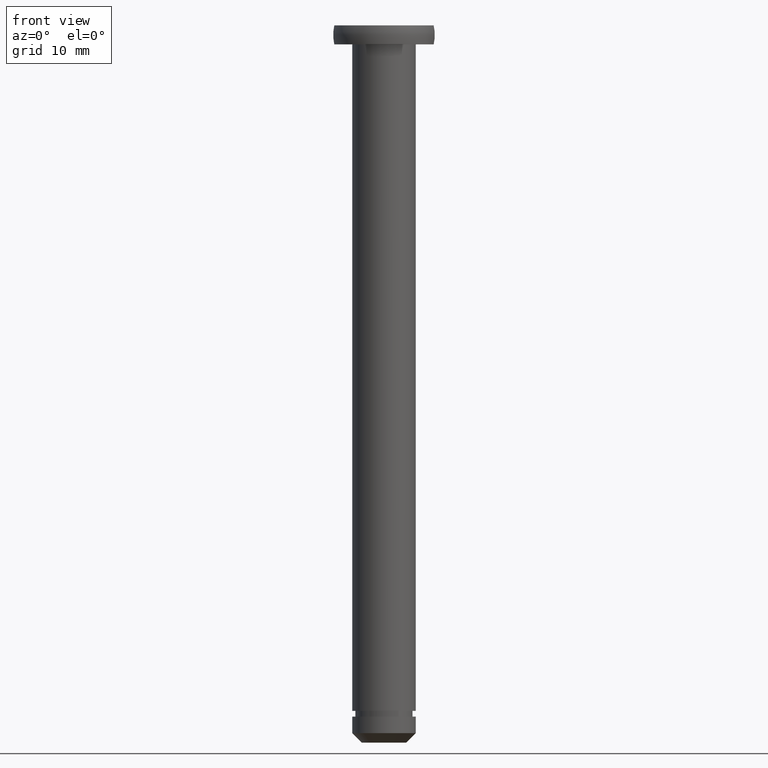
[diagram: clean part render]
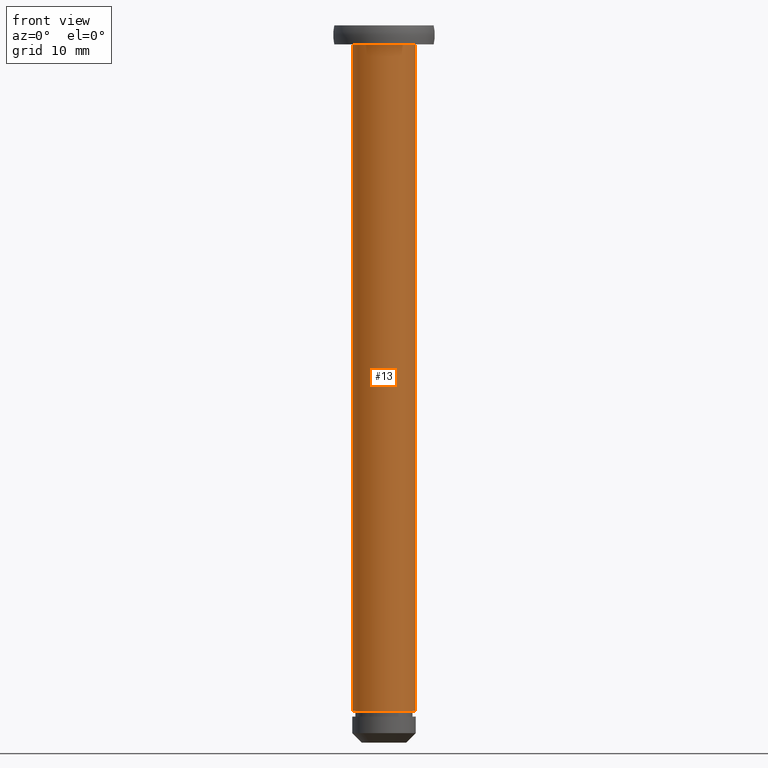
[diagram: same view with one face highlighted and labeled with its STEP entity id]
A machine part, front view. The second image highlights one B-rep face of the part: STEP entity #13.
In plain terms, the highlighted cylindrical surface (edge-blend (fillet) strip) has radius 5 mm, axis along (0, 0, -1).
Its self-contained STEP definition (entity closure, byte-faithful):
#2 = CIRCLE ( 'NONE', #32, 5.000000000000000000 ) ;
#10 = EDGE_CURVE ( 'NONE', #200, #320, #235, .T. ) ;
#13 = ADVANCED_FACE ( 'NONE', ( #199 ), #468, .T. ) ;
#27 = EDGE_CURVE ( 'NONE', #417, #320, #2, .T. ) ;
#28 = DIRECTION ( 'NONE',  ( 0.0000000000000000000, 0.0000000000000000000, -1.000000000000000000 ) ) ;
#32 = AXIS2_PLACEMENT_3D ( 'NONE', #410, #378, #120 ) ;
#54 = DIRECTION ( 'NONE',  ( -1.000000000000000000, 0.0000000000000000000, 0.0000000000000000000 ) ) ;
#74 = DIRECTION ( 'NONE',  ( 0.0000000000000000000, 0.0000000000000000000, -1.000000000000000000 ) ) ;
#75 = ORIENTED_EDGE ( 'NONE', *, *, #27, .F. ) ;
#81 = VERTEX_POINT ( 'NONE', #373 ) ;
#87 = ORIENTED_EDGE ( 'NONE', *, *, #158, .F. ) ;
#106 = CIRCLE ( 'NONE', #197, 5.000000000000000000 ) ;
#120 = DIRECTION ( 'NONE',  ( -1.000000000000000000, 0.0000000000000000000, 0.0000000000000000000 ) ) ;
#133 = ORIENTED_EDGE ( 'NONE', *, *, #10, .T. ) ;
#137 = CARTESIAN_POINT ( 'NONE',  ( -5.000000000000000000, 0.0000000000000000000, -3.280275378074167100E-014 ) ) ;
#138 = CARTESIAN_POINT ( 'NONE',  ( 5.000000000000000000, 6.123233995736766300E-016, -3.280275378074167100E-014 ) ) ;
#147 = CARTESIAN_POINT ( 'NONE',  ( 0.0000000000000000000, 0.0000000000000000000, -3.280275378074167100E-014 ) ) ;
#154 = LINE ( 'NONE', #138, #329 ) ;
#158 = EDGE_CURVE ( 'NONE', #81, #417, #154, .T. ) ;
#166 = EDGE_LOOP ( 'NONE', ( #87, #277, #133, #75 ) ) ;
#197 = AXIS2_PLACEMENT_3D ( 'NONE', #430, #28, #54 ) ;
#199 = FACE_OUTER_BOUND ( 'NONE', #166, .T. ) ;
#200 = VERTEX_POINT ( 'NONE', #351 ) ;
#208 = DIRECTION ( 'NONE',  ( 0.0000000000000000000, 0.0000000000000000000, -1.000000000000000000 ) ) ;
#216 = DIRECTION ( 'NONE',  ( 0.0000000000000000000, 0.0000000000000000000, -1.000000000000000000 ) ) ;
#235 = LINE ( 'NONE', #137, #451 ) ;
#277 = ORIENTED_EDGE ( 'NONE', *, *, #409, .T. ) ;
#320 = VERTEX_POINT ( 'NONE', #322 ) ;
#322 = CARTESIAN_POINT ( 'NONE',  ( -5.000000000000000000, 0.0000000000000000000, -108.0000000360869900 ) ) ;
#329 = VECTOR ( 'NONE', #74, 1000.000000000000000 ) ;
#338 = CARTESIAN_POINT ( 'NONE',  ( 5.000000000000000000, 6.123233995736766300E-016, -108.0000000360869900 ) ) ;
#351 = CARTESIAN_POINT ( 'NONE',  ( -5.000000000000000000, 0.0000000000000000000, -3.000000018043495100 ) ) ;
#373 = CARTESIAN_POINT ( 'NONE',  ( 5.000000000000000000, 6.123233995736766300E-016, -3.000000018043495100 ) ) ;
#375 = DIRECTION ( 'NONE',  ( -1.000000000000000000, 0.0000000000000000000, 0.0000000000000000000 ) ) ;
#378 = DIRECTION ( 'NONE',  ( 0.0000000000000000000, 0.0000000000000000000, -1.000000000000000000 ) ) ;
#409 = EDGE_CURVE ( 'NONE', #81, #200, #106, .T. ) ;
#410 = CARTESIAN_POINT ( 'NONE',  ( 0.0000000000000000000, 0.0000000000000000000, -108.0000000360869900 ) ) ;
#417 = VERTEX_POINT ( 'NONE', #338 ) ;
#423 = AXIS2_PLACEMENT_3D ( 'NONE', #147, #208, #375 ) ;
#430 = CARTESIAN_POINT ( 'NONE',  ( 0.0000000000000000000, 0.0000000000000000000, -3.000000018043495100 ) ) ;
#451 = VECTOR ( 'NONE', #216, 1000.000000000000000 ) ;
#468 = CYLINDRICAL_SURFACE ( 'NONE', #423, 5.000000000000000000 ) ;